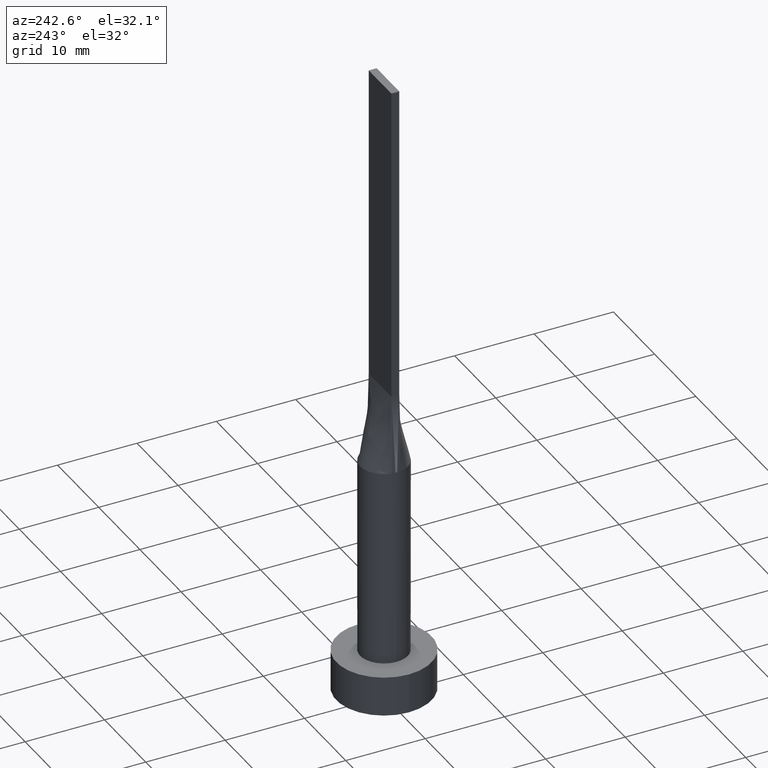
[diagram: clean part render]
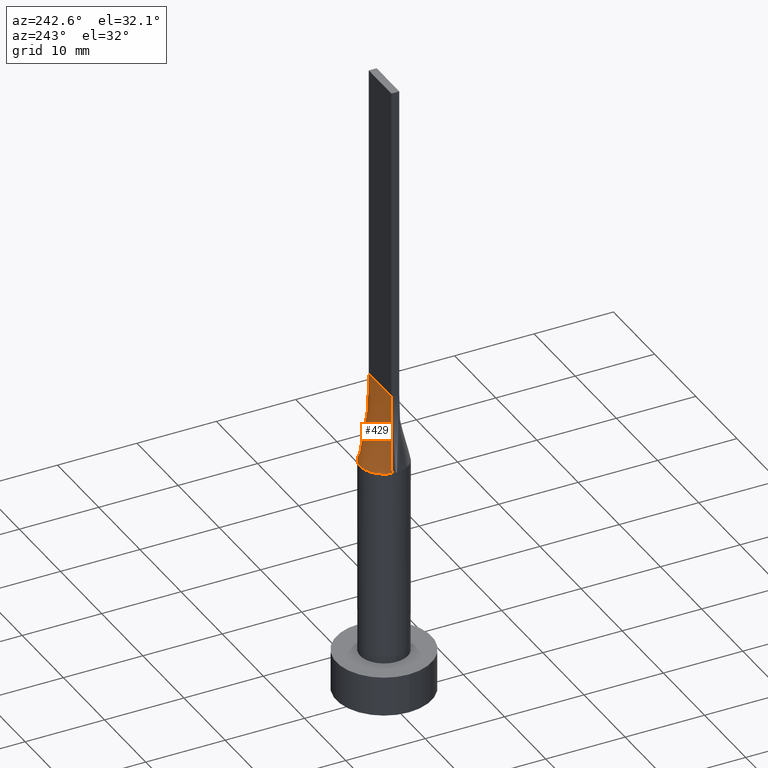
[diagram: same view with one face highlighted and labeled with its STEP entity id]
A machine part, auxiliary view. The second image highlights one B-rep face of the part: STEP entity #429.
In plain terms, the highlighted face is a freeform B-spline surface patch.
Its self-contained STEP definition (entity closure, byte-faithful):
#3 = CARTESIAN_POINT ( 'NONE',  ( -0.8331239790496237640, 2.909606296598777231, 30.00000000000000000 ) ) ;
#6 = LINE ( 'NONE', #543, #510 ) ;
#7 = CARTESIAN_POINT ( 'NONE',  ( 2.951871110830718514, 0.5367036202482695639, 30.00000000000000355 ) ) ;
#8 = CARTESIAN_POINT ( 'NONE',  ( 0.4172881767044975820, 3.000000000000000000, 30.00000000000000355 ) ) ;
#26 = LINE ( 'NONE', #334, #490 ) ;
#44 = CARTESIAN_POINT ( 'NONE',  ( -0.2291666666666670460, 0.5000000000000002220, 39.99999999999999289 ) ) ;
#50 = CARTESIAN_POINT ( 'NONE',  ( -1.145833333333333703, 0.5000000000000002220, 39.99999999999999289 ) ) ;
#70 = VERTEX_POINT ( 'NONE', #499 ) ;
#75 = CARTESIAN_POINT ( 'NONE',  ( 2.520833333333333037, 0.5000000000000002220, 39.99999999999999289 ) ) ;
#77 = CARTESIAN_POINT ( 'NONE',  ( -0.8331239790496237640, 2.909606296598777231, 30.00000000000000000 ) ) ;
#81 = CARTESIAN_POINT ( 'NONE',  ( -2.907609730299723250, 0.7786563145999495505, 30.00000000000000355 ) ) ;
#87 = CARTESIAN_POINT ( 'NONE',  ( -2.907609730299723250, 0.7786563145999495505, 30.00000000000000355 ) ) ;
#89 = CARTESIAN_POINT ( 'NONE',  ( -1.566158656300002061, 2.589797565249319700, 30.00000000000000000 ) ) ;
#95 = B_SPLINE_CURVE_WITH_KNOTS ( 'NONE', 3,
 ( #170, #492, #209, #207, #251, #205, #259, #532, #440, #306, #77, #452, #212, #399, #572, #126, #81, #574 ),
 .UNSPECIFIED., .F., .F.,
 ( 4, 2, 2, 2, 2, 2, 2, 2, 4 ),
 ( 0.000000000000000000, 0.1250000000000000000, 0.2500000000000000000, 0.3750000000000000000, 0.5000000000000000000, 0.6250000000000000000, 0.7500000000000000000, 0.8750000000000000000, 1.000000000000000000 ),
 .UNSPECIFIED. ) ;
#96 = CARTESIAN_POINT ( 'NONE',  ( -1.604166666666666963, 0.5000000000000002220, 39.99999999999999289 ) ) ;
#105 = LINE ( 'NONE', #382, #253 ) ;
#108 = DIRECTION ( 'NONE',  ( 0.02015674154923146819, -0.003664862099860173583, 0.9997901152521495582 ) ) ;
#116 = DIRECTION ( 'NONE',  ( -1.000000000000000000, -0.000000000000000000, -0.000000000000000000 ) ) ;
#121 = CARTESIAN_POINT ( 'NONE',  ( 2.951609730299722401, 0.5366563145999496687, 30.00000000000000355 ) ) ;
#126 = CARTESIAN_POINT ( 'NONE',  ( -2.829409566978765334, 1.041313647073049298, 30.00000000000001066 ) ) ;
#129 = VERTEX_POINT ( 'NONE', #147 ) ;
#133 = CARTESIAN_POINT ( 'NONE',  ( 1.833333333333333037, 0.5000000000000002220, 39.99999999999999289 ) ) ;
#146 = CARTESIAN_POINT ( 'NONE',  ( -0.4583333333333337034, 0.5000000000000002220, 39.99999999999999289 ) ) ;
#147 = CARTESIAN_POINT ( 'NONE',  ( 2.750000000000000000, 0.5000000000000002220, 40.00000000000000000 ) ) ;
#152 = VERTEX_POINT ( 'NONE', #7 ) ;
#154 = ORIENTED_EDGE ( 'NONE', *, *, #305, .F. ) ;
#157 = ORIENTED_EDGE ( 'NONE', *, *, #401, .T. ) ;
#165 = CARTESIAN_POINT ( 'NONE',  ( 2.567367750129863957, 1.580669302822274913, 30.00000000000001066 ) ) ;
#170 = CARTESIAN_POINT ( 'NONE',  ( 2.951871110830718514, 0.5367036202482695639, 30.00000000000000355 ) ) ;
#171 = VERTEX_POINT ( 'NONE', #317 ) ;
#176 = DIRECTION ( 'NONE',  ( -0.02015674154923150635, -0.003664862099860195267, 0.9997901152521495582 ) ) ;
#179 = CARTESIAN_POINT ( 'NONE',  ( 1.145833333333333037, 0.5000000000000002220, 39.99999999999999289 ) ) ;
#188 = CARTESIAN_POINT ( 'NONE',  ( -2.951609730299722401, 0.5366563145999488915, 30.00000000000000355 ) ) ;
#205 = CARTESIAN_POINT ( 'NONE',  ( 1.882426928433512892, 2.362790634184934291, 30.00000000000000355 ) ) ;
#207 = CARTESIAN_POINT ( 'NONE',  ( 2.567367750129863957, 1.580669302822274913, 30.00000000000001066 ) ) ;
#209 = CARTESIAN_POINT ( 'NONE',  ( 2.829409566978765778, 1.041313647073049298, 30.00000000000001421 ) ) ;
#212 = CARTESIAN_POINT ( 'NONE',  ( -1.882426928433513336, 2.362790634184935623, 30.00000000000000711 ) ) ;
#215 = CARTESIAN_POINT ( 'NONE',  ( 2.750000000000000000, 0.5000000000000002220, 40.00000000000000000 ) ) ;
#221 = CARTESIAN_POINT ( 'NONE',  ( -2.567367750129864401, 1.580669302822275357, 30.00000000000001421 ) ) ;
#225 = CARTESIAN_POINT ( 'NONE',  ( 0.4583333333333330373, 0.5000000000000002220, 39.99999999999999289 ) ) ;
#251 = CARTESIAN_POINT ( 'NONE',  ( 2.382399439808187580, 1.857547746650221709, 30.00000000000000711 ) ) ;
#253 = VECTOR ( 'NONE', #108, 1000.000000000000114 ) ;
#256 = CARTESIAN_POINT ( 'NONE',  ( 2.829409566978765778, 1.041313647073049298, 30.00000000000001421 ) ) ;
#259 = CARTESIAN_POINT ( 'NONE',  ( 1.566158656300002061, 2.589797565249318811, 30.00000000000000000 ) ) ;
#272 = CARTESIAN_POINT ( 'NONE',  ( -2.382399439808186692, 1.857547746650221265, 30.00000000000001066 ) ) ;
#275 = CARTESIAN_POINT ( 'NONE',  ( 1.882426928433512892, 2.362790634184934291, 30.00000000000000355 ) ) ;
#277 = CARTESIAN_POINT ( 'NONE',  ( 0.8331239790496237640, 2.909606296598776787, 30.00000000000000355 ) ) ;
#279 = CARTESIAN_POINT ( 'NONE',  ( -1.882426928433513336, 2.362790634184935623, 30.00000000000000711 ) ) ;
#305 = EDGE_CURVE ( 'NONE', #129, #70, #26, .T. ) ;
#306 = CARTESIAN_POINT ( 'NONE',  ( -0.4172881767044976375, 2.999999999999999556, 29.99999999999999645 ) ) ;
#317 = CARTESIAN_POINT ( 'NONE',  ( -2.951881273711813858, 0.5367053345652121887, 30.00000000000000355 ) ) ;
#325 = CARTESIAN_POINT ( 'NONE',  ( 2.382399439808187580, 1.857547746650221709, 30.00000000000000711 ) ) ;
#327 = CARTESIAN_POINT ( 'NONE',  ( -2.291666666666666519, 0.5000000000000002220, 39.99999999999999289 ) ) ;
#334 = CARTESIAN_POINT ( 'NONE',  ( -2.750000000000000000, 0.5000000000000002220, 40.00000000000000000 ) ) ;
#347 = CARTESIAN_POINT ( 'NONE',  ( 2.907609730299723250, 0.7786563145999496616, 29.99999999999999645 ) ) ;
#363 = CARTESIAN_POINT ( 'NONE',  ( -2.829409566978765334, 1.041313647073049298, 30.00000000000001066 ) ) ;
#365 = CARTESIAN_POINT ( 'NONE',  ( -2.520833333333333037, 0.5000000000000002220, 39.99999999999999289 ) ) ;
#375 = EDGE_CURVE ( 'NONE', #171, #70, #105, .T. ) ;
#382 = CARTESIAN_POINT ( 'NONE',  ( -2.850804865149861200, 0.5183281572999746123, 35.00000000000000000 ) ) ;
#399 = CARTESIAN_POINT ( 'NONE',  ( -2.382399439808186692, 1.857547746650221265, 30.00000000000001066 ) ) ;
#400 = EDGE_LOOP ( 'NONE', ( #157, #567, #154, #564 ) ) ;
#401 = EDGE_CURVE ( 'NONE', #152, #171, #95, .T. ) ;
#411 = CARTESIAN_POINT ( 'NONE',  ( 1.604166666666666519, 0.5000000000000002220, 39.99999999999999289 ) ) ;
#416 = CARTESIAN_POINT ( 'NONE',  ( -2.750000000000000000, 0.5000000000000002220, 40.00000000000000000 ) ) ;
#429 = ADVANCED_FACE ( 'NONE', ( #569 ), #491, .T. ) ;
#440 = CARTESIAN_POINT ( 'NONE',  ( 0.4172881767044975820, 3.000000000000000000, 30.00000000000000355 ) ) ;
#444 = CARTESIAN_POINT ( 'NONE',  ( 2.291666666666666519, 0.5000000000000002220, 39.99999999999999289 ) ) ;
#452 = CARTESIAN_POINT ( 'NONE',  ( -1.566158656300002061, 2.589797565249319700, 30.00000000000000000 ) ) ;
#454 = CARTESIAN_POINT ( 'NONE',  ( 0.9166666666666664076, 0.5000000000000002220, 39.99999999999999289 ) ) ;
#458 = CARTESIAN_POINT ( 'NONE',  ( 0.2291666666666662966, 0.5000000000000002220, 40.00000000000000000 ) ) ;
#460 = CARTESIAN_POINT ( 'NONE',  ( -1.833333333333333481, 0.5000000000000002220, 39.99999999999999289 ) ) ;
#478 = EDGE_CURVE ( 'NONE', #152, #129, #6, .T. ) ;
#490 = VECTOR ( 'NONE', #116, 1000.000000000000000 ) ;
#491 = B_SPLINE_SURFACE_WITH_KNOTS ( 'NONE', 3, 1, ( 
 ( #121, #215 ),
 ( #347, #75 ),
 ( #256, #444 ),
 ( #165, #133 ),
 ( #325, #411 ),
 ( #275, #179 ),
 ( #541, #454 ),
 ( #277, #225 ),
 ( #8, #458 ),
 ( #552, #44 ),
 ( #3, #146 ),
 ( #89, #505 ),
 ( #279, #50 ),
 ( #272, #96 ),
 ( #221, #460 ),
 ( #363, #327 ),
 ( #87, #365 ),
 ( #188, #416 ) ),
 .UNSPECIFIED., .F., .F., .F.,
 ( 4, 2, 2, 2, 2, 2, 2, 2, 4 ),
 ( 2, 2 ),
 ( 0.000000000000000000, 0.1250000000000000000, 0.2500000000000000000, 0.3750000000000000000, 0.5000000000000000000, 0.6250000000000000000, 0.7500000000000000000, 0.8750000000000000000, 1.000000000000000000 ),
 ( 0.000000000000000000, 1.000000000000000000 ),
 .UNSPECIFIED. ) ;
#492 = CARTESIAN_POINT ( 'NONE',  ( 2.907609730299723250, 0.7786563145999496616, 29.99999999999999645 ) ) ;
#499 = CARTESIAN_POINT ( 'NONE',  ( -2.750000000000000000, 0.5000000000000002220, 40.00000000000000000 ) ) ;
#505 = CARTESIAN_POINT ( 'NONE',  ( -0.9166666666666669627, 0.5000000000000002220, 39.99999999999999289 ) ) ;
#510 = VECTOR ( 'NONE', #176, 1000.000000000000114 ) ;
#532 = CARTESIAN_POINT ( 'NONE',  ( 0.8331239790496237640, 2.909606296598776787, 30.00000000000000355 ) ) ;
#541 = CARTESIAN_POINT ( 'NONE',  ( 1.566158656300002061, 2.589797565249318811, 30.00000000000000000 ) ) ;
#543 = CARTESIAN_POINT ( 'NONE',  ( 2.850804865149861644, 0.5183281572999747233, 35.00000000000000000 ) ) ;
#552 = CARTESIAN_POINT ( 'NONE',  ( -0.4172881767044976375, 2.999999999999999556, 29.99999999999999645 ) ) ;
#564 = ORIENTED_EDGE ( 'NONE', *, *, #478, .F. ) ;
#567 = ORIENTED_EDGE ( 'NONE', *, *, #375, .T. ) ;
#569 = FACE_OUTER_BOUND ( 'NONE', #400, .T. ) ;
#572 = CARTESIAN_POINT ( 'NONE',  ( -2.567367750129864401, 1.580669302822275357, 30.00000000000001421 ) ) ;
#574 = CARTESIAN_POINT ( 'NONE',  ( -2.951881273711813858, 0.5367053345652121887, 30.00000000000000355 ) ) ;